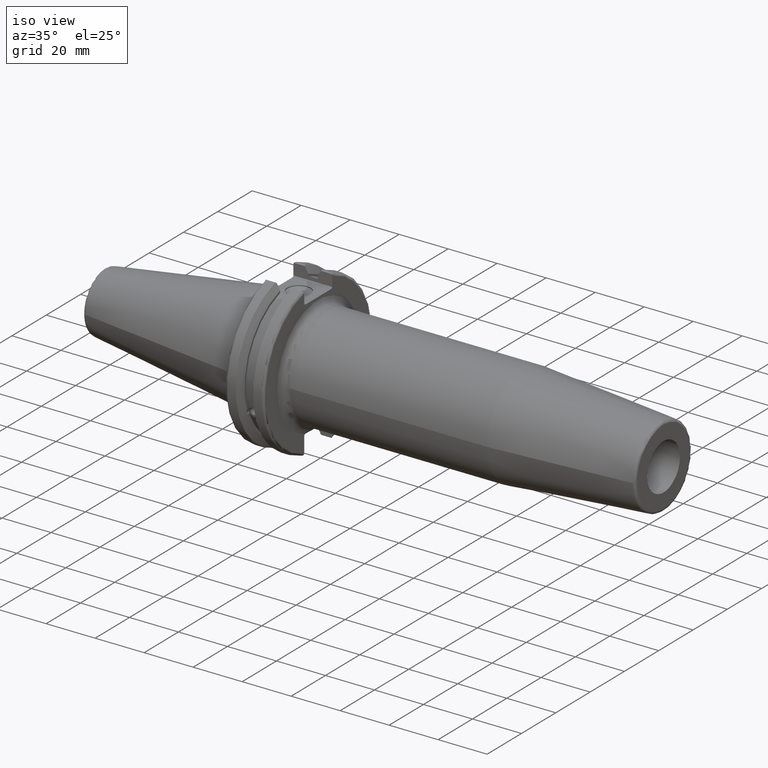
[diagram: clean part render]
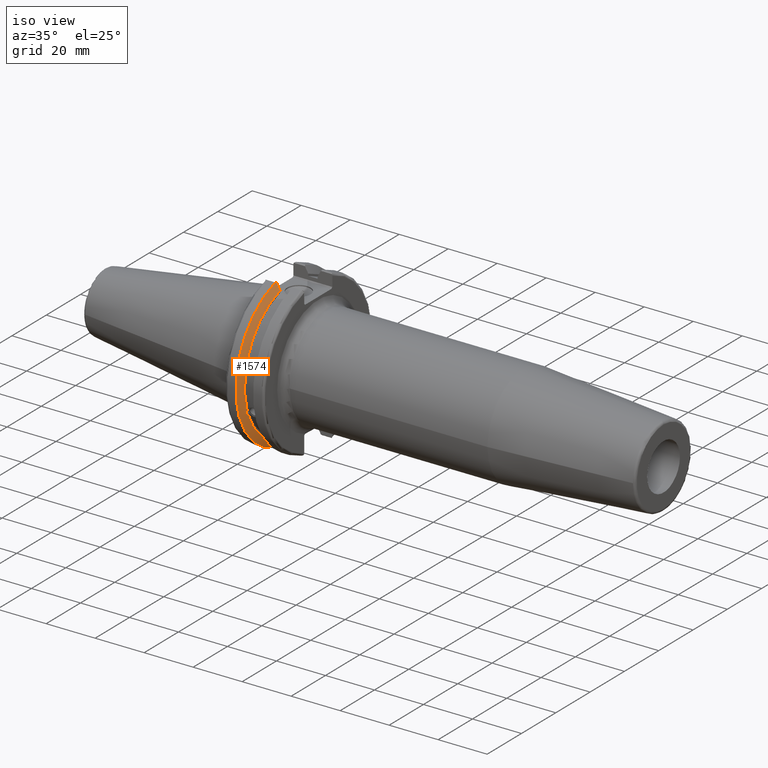
[diagram: same view with one face highlighted and labeled with its STEP entity id]
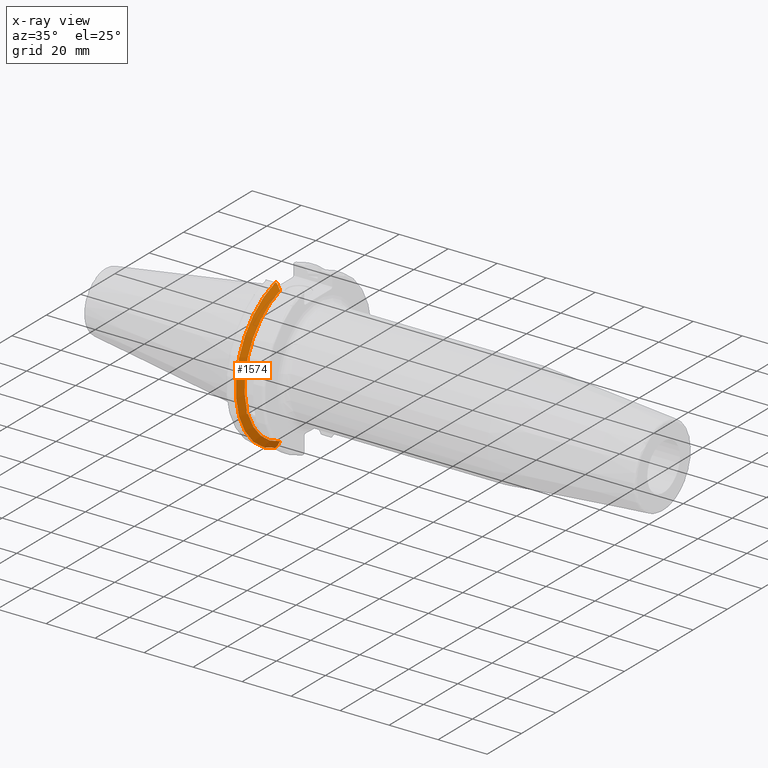
[diagram: x-ray of the same camera — body ghosted, the highlighted face saturated]
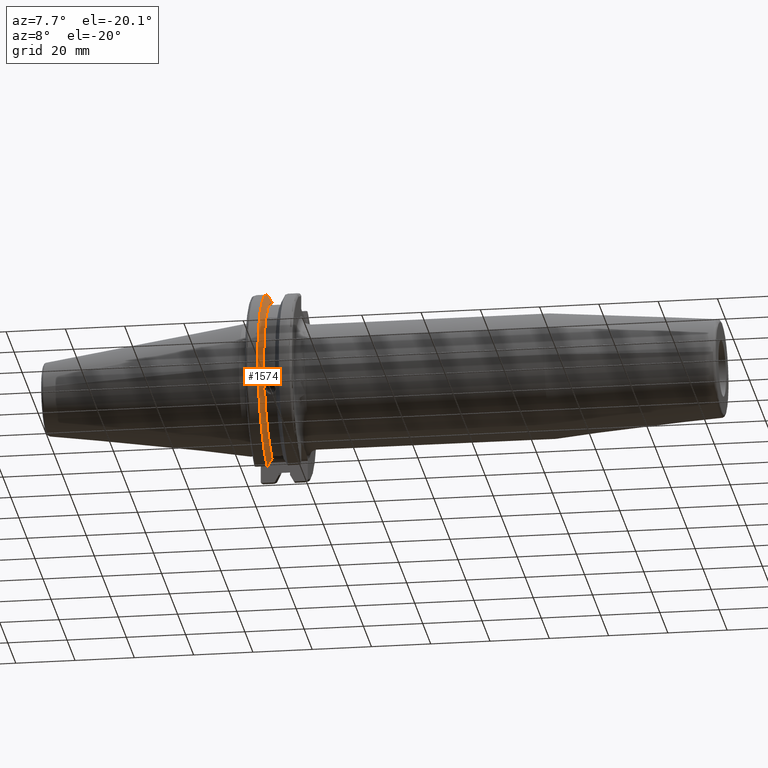
[diagram: same view with one face highlighted and labeled with its STEP entity id]
A machine part, iso view. The second image highlights one B-rep face of the part: STEP entity #1574.
The next image is the same camera in x-ray: the body ghosted, the highlighted face saturated — about 0% of this face is hidden behind the body in this view.
A second angle (auxiliary view) of the same face is appended — the face is thin or edge-on in the first view.
In plain terms, the highlighted conical surface has half-angle 60 deg.
Its self-contained STEP definition (entity closure, byte-faithful):
#25=(
BOUNDED_CURVE()
B_SPLINE_CURVE(2,(#2852,#2853,#2854),.UNSPECIFIED.,.F.,.F.)
B_SPLINE_CURVE_WITH_KNOTS((3,3),(0.,0.276549142796136),.UNSPECIFIED.)
CURVE()
GEOMETRIC_REPRESENTATION_ITEM()
RATIONAL_B_SPLINE_CURVE((1.,1.00095203903316,1.00031614444813))
REPRESENTATION_ITEM('')
);
#26=(
BOUNDED_CURVE()
B_SPLINE_CURVE(2,(#2864,#2865,#2866),.UNSPECIFIED.,.F.,.F.)
B_SPLINE_CURVE_WITH_KNOTS((3,3),(0.0550586467392022,0.33160778953585),
 .UNSPECIFIED.)
CURVE()
GEOMETRIC_REPRESENTATION_ITEM()
RATIONAL_B_SPLINE_CURVE((1.00031614445148,1.00095203904325,1.))
REPRESENTATION_ITEM('')
);
#27=(
BOUNDED_CURVE()
B_SPLINE_CURVE(2,(#2899,#2900,#2901),.UNSPECIFIED.,.F.,.F.)
B_SPLINE_CURVE_WITH_KNOTS((3,3),(0.,0.0639048713676282),.UNSPECIFIED.)
CURVE()
GEOMETRIC_REPRESENTATION_ITEM()
RATIONAL_B_SPLINE_CURVE((1.,1.00028444218284,1.00047644010574))
REPRESENTATION_ITEM('')
);
#28=(
BOUNDED_CURVE()
B_SPLINE_CURVE(2,(#2907,#2908,#2909),.UNSPECIFIED.,.F.,.F.)
B_SPLINE_CURVE_WITH_KNOTS((3,3),(0.329353533631205,0.393258405001025),
 .UNSPECIFIED.)
CURVE()
GEOMETRIC_REPRESENTATION_ITEM()
RATIONAL_B_SPLINE_CURVE((1.00047644010572,1.00028444218283,1.))
REPRESENTATION_ITEM('')
);
#88=B_SPLINE_CURVE_WITH_KNOTS('',3,(#2440,#2441,#2442,#2443,#2444,#2445,
#2446,#2447,#2448,#2449,#2450,#2451,#2452,#2453),.UNSPECIFIED.,.F.,.F.,
(4,2,2,2,2,2,4),(0.451995700189024,0.464547828547663,0.504528771685167,
0.544509714822672,0.584490657960178,0.624471601097683,0.63702372945632),
 .UNSPECIFIED.);
#362=CONICAL_SURFACE('',#1774,30.3546886482472,1.0471975511966);
#448=FACE_OUTER_BOUND('',#550,.T.);
#550=EDGE_LOOP('',(#1469,#1470,#1471,#1472,#1473,#1474,#1475,#1476));
#580=CIRCLE('',#1661,28.9593772964944);
#606=CIRCLE('',#1724,31.75);
#624=CIRCLE('',#1775,28.9593772964944);
#661=VERTEX_POINT('',#2437);
#662=VERTEX_POINT('',#2439);
#679=VERTEX_POINT('',#2532);
#751=VERTEX_POINT('',#2849);
#752=VERTEX_POINT('',#2851);
#755=VERTEX_POINT('',#2863);
#759=VERTEX_POINT('',#2897);
#760=VERTEX_POINT('',#2903);
#829=EDGE_CURVE('',#662,#661,#88,.T.);
#853=EDGE_CURVE('',#662,#679,#580,.T.);
#951=EDGE_CURVE('',#752,#751,#25,.T.);
#957=EDGE_CURVE('',#755,#679,#26,.T.);
#965=EDGE_CURVE('',#759,#751,#27,.T.);
#967=EDGE_CURVE('',#759,#760,#606,.T.);
#968=EDGE_CURVE('',#755,#760,#28,.T.);
#1012=EDGE_CURVE('',#752,#661,#624,.T.);
#1469=ORIENTED_EDGE('',*,*,#829,.T.);
#1470=ORIENTED_EDGE('',*,*,#1012,.F.);
#1471=ORIENTED_EDGE('',*,*,#951,.T.);
#1472=ORIENTED_EDGE('',*,*,#965,.F.);
#1473=ORIENTED_EDGE('',*,*,#967,.T.);
#1474=ORIENTED_EDGE('',*,*,#968,.F.);
#1475=ORIENTED_EDGE('',*,*,#957,.T.);
#1476=ORIENTED_EDGE('',*,*,#853,.F.);
#1574=ADVANCED_FACE('',(#448),#362,.T.);
#1661=AXIS2_PLACEMENT_3D('',#2533,#1923,#1924);
#1724=AXIS2_PLACEMENT_3D('',#2905,#2101,#2102);
#1774=AXIS2_PLACEMENT_3D('',#3025,#2222,#2223);
#1775=AXIS2_PLACEMENT_3D('',#3026,#2224,#2225);
#1923=DIRECTION('center_axis',(1.,0.,0.));
#1924=DIRECTION('ref_axis',(0.,0.,-1.));
#2101=DIRECTION('center_axis',(1.,0.,0.));
#2102=DIRECTION('ref_axis',(0.,0.,-1.));
#2222=DIRECTION('center_axis',(-1.,0.,0.));
#2223=DIRECTION('ref_axis',(0.,-1.,-1.22464679914735E-16));
#2224=DIRECTION('center_axis',(1.,0.,0.));
#2225=DIRECTION('ref_axis',(0.,0.,-1.));
#2437=CARTESIAN_POINT('',(9.2191,-27.4956274489925,-9.09043478536245));
#2439=CARTESIAN_POINT('',(9.2191,-26.9060914640648,-10.7101715919071));
#2440=CARTESIAN_POINT('Ctrl Pts',(9.2191,-26.9060914640648,-10.7101715919071));
#2441=CARTESIAN_POINT('Ctrl Pts',(9.20497959280038,-26.9406927482839,-10.6893765730703));
#2442=CARTESIAN_POINT('Ctrl Pts',(9.19150701821433,-26.9744191989197,-10.6676007180673));
#2443=CARTESIAN_POINT('Ctrl Pts',(9.13811855884095,-27.1113422433189,-10.5723885976054));
#2444=CARTESIAN_POINT('Ctrl Pts',(9.09998029158246,-27.2180531796526,-10.4801333026531));
#2445=CARTESIAN_POINT('Ctrl Pts',(9.04778935539424,-27.3968610665578,-10.2639559818059));
#2446=CARTESIAN_POINT('Ctrl Pts',(9.0341,-27.4684373304961,-10.139516340139));
#2447=CARTESIAN_POINT('Ctrl Pts',(9.0341,-27.559599249844,-9.8890510252165));
#2448=CARTESIAN_POINT('Ctrl Pts',(9.04778935539424,-27.5847569104122,-9.74771639360671));
#2449=CARTESIAN_POINT('Ctrl Pts',(9.09998029158246,-27.5867382255984,-9.46717946402648));
#2450=CARTESIAN_POINT('Ctrl Pts',(9.13811855884095,-27.5642934663232,-9.32791534028655));
#2451=CARTESIAN_POINT('Ctrl Pts',(9.19150701821434,-27.5206055003512,-9.16696618806877));
#2452=CARTESIAN_POINT('Ctrl Pts',(9.20497959280038,-27.5087667900418,-9.12860597076217));
#2453=CARTESIAN_POINT('Ctrl Pts',(9.2191,-27.4956274489925,-9.09043478536245));
#2532=CARTESIAN_POINT('',(9.2191,-8.19,-27.7771386827498));
#2533=CARTESIAN_POINT('Origin',(9.2191,0.,0.));
#2849=CARTESIAN_POINT('',(7.88668530351257,-8.19,30.1755016258903));
#2851=CARTESIAN_POINT('',(9.2191,-8.19,27.7771386827498));
#2852=CARTESIAN_POINT('Ctrl Pts',(9.2191,-8.19,27.7771386827498));
#2853=CARTESIAN_POINT('Ctrl Pts',(8.58046356152393,-8.19,28.9303689539705));
#2854=CARTESIAN_POINT('Ctrl Pts',(7.88668530351257,-8.19,30.1755016258903));
#2863=CARTESIAN_POINT('',(7.88668530351256,-8.19,-30.1755016258903));
#2864=CARTESIAN_POINT('Ctrl Pts',(7.88668530351256,-8.19,-30.1755016258903));
#2865=CARTESIAN_POINT('Ctrl Pts',(8.5804635615235,-8.19,-28.9303689539712));
#2866=CARTESIAN_POINT('Ctrl Pts',(9.2191,-8.19,-27.7771386827498));
#2897=CARTESIAN_POINT('',(7.60793323092436,-8.67204822802685,30.5427254764662));
#2899=CARTESIAN_POINT('Ctrl Pts',(7.60793323092436,-8.67204822802686,30.5427254764662));
#2900=CARTESIAN_POINT('Ctrl Pts',(7.74899148121626,-8.42917748262648,30.357706789263));
#2901=CARTESIAN_POINT('Ctrl Pts',(7.88668530351257,-8.19,30.1755016258903));
#2903=CARTESIAN_POINT('',(7.60793323092436,-8.67204822802685,-30.5427254764662));
#2905=CARTESIAN_POINT('Origin',(7.60793323092436,0.,0.));
#2907=CARTESIAN_POINT('Ctrl Pts',(7.88668530351256,-8.19,-30.1755016258903));
#2908=CARTESIAN_POINT('Ctrl Pts',(7.74899148121159,-8.42917748263467,-30.3577067892692));
#2909=CARTESIAN_POINT('Ctrl Pts',(7.60793323092435,-8.67204822802687,-30.5427254764662));
#3025=CARTESIAN_POINT('Origin',(8.41351661546218,0.,0.));
#3026=CARTESIAN_POINT('Origin',(9.2191,0.,0.));